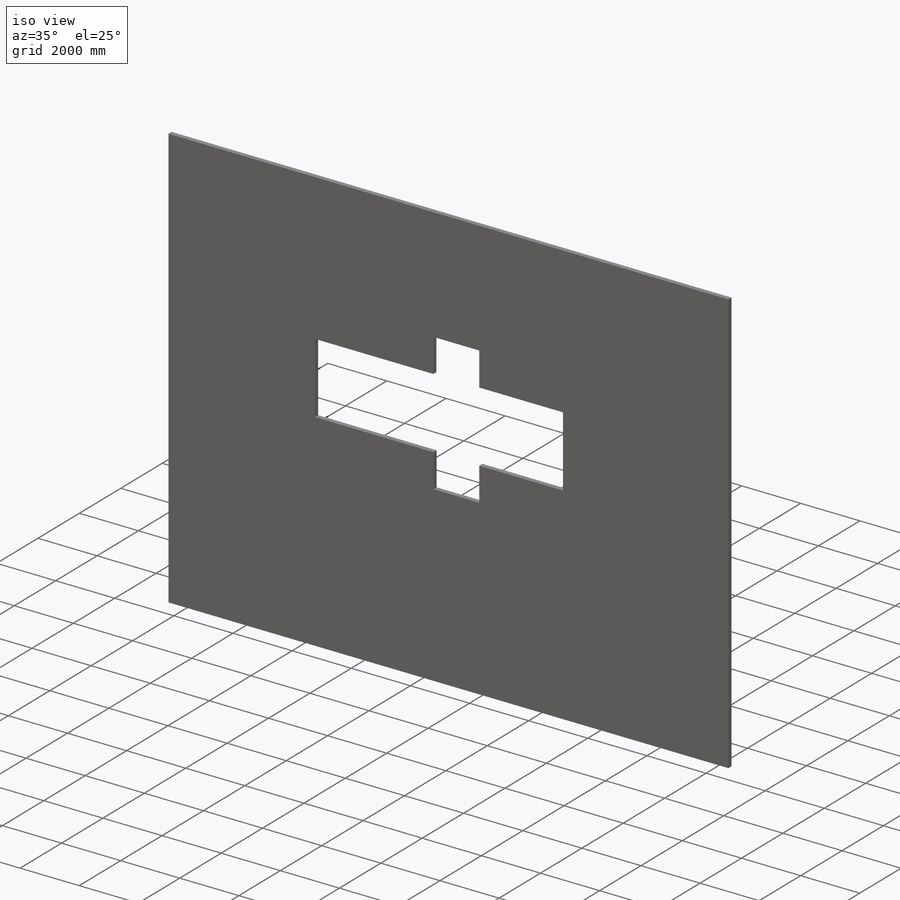
[diagram: iso view]
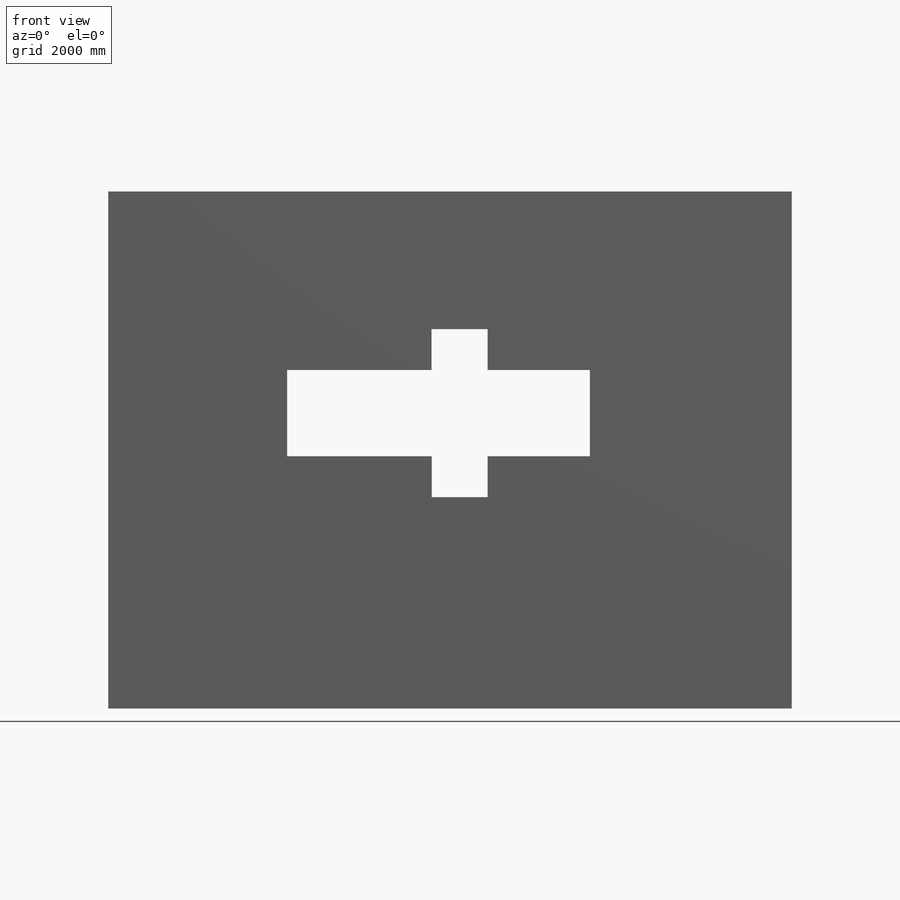
[diagram: front view]
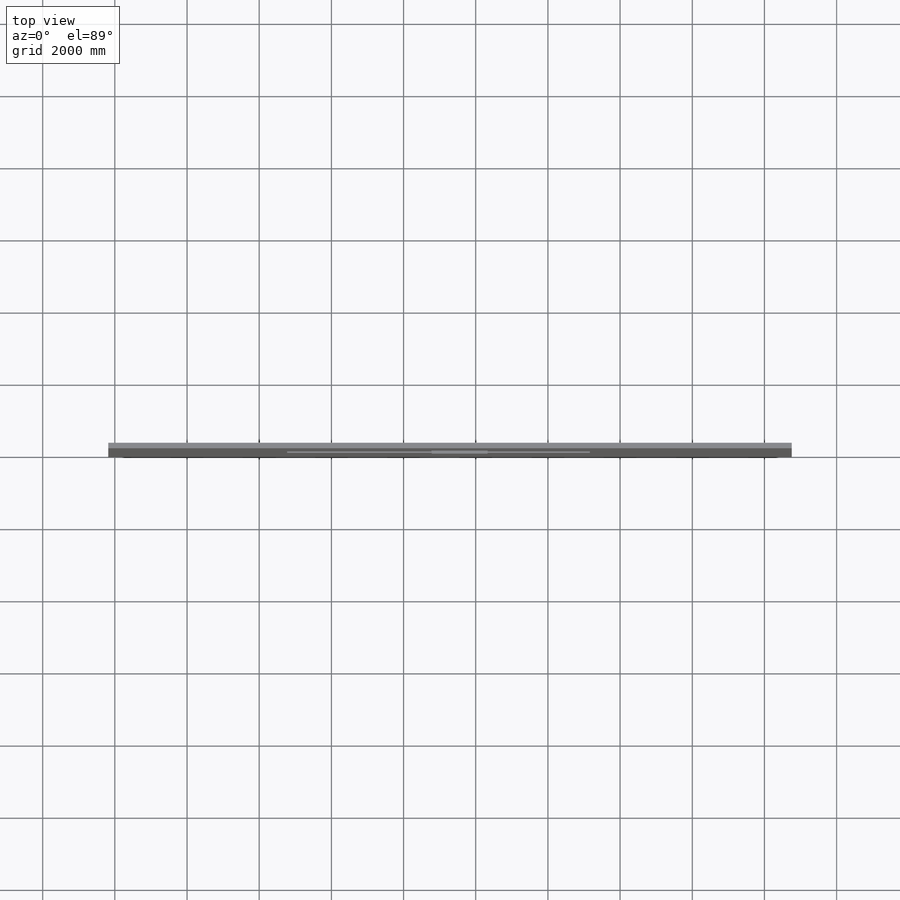
[diagram: top view]
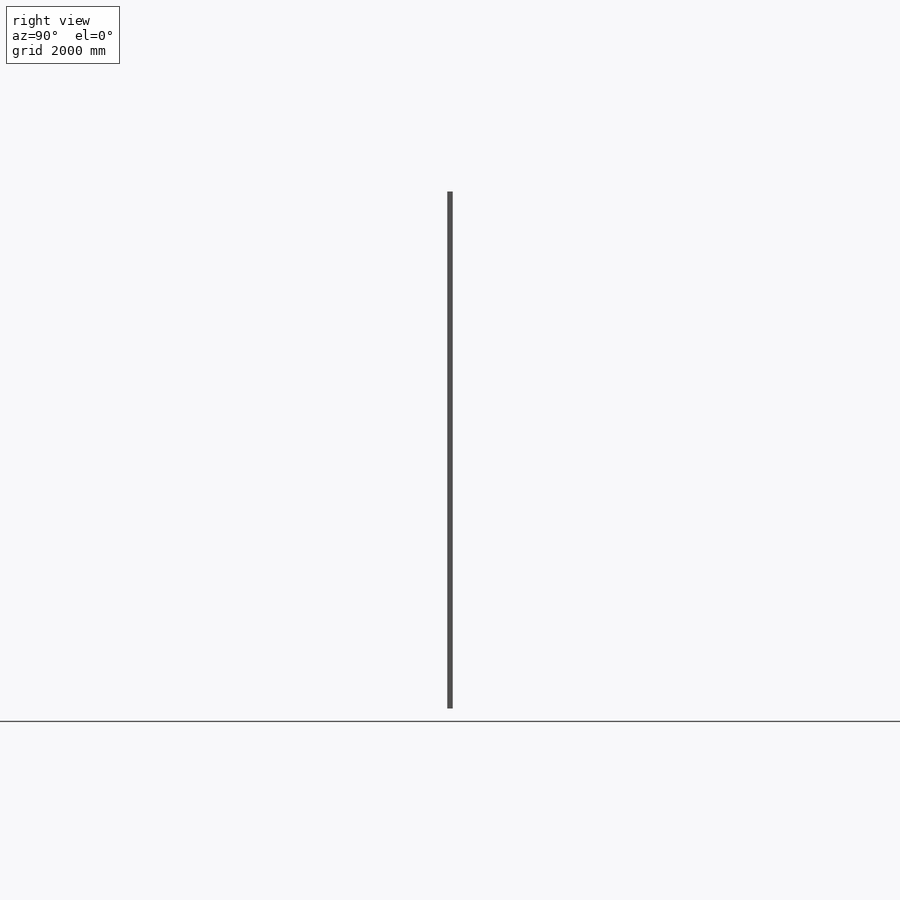
[diagram: right view]
SOLIDWORKS PART (.sldprt)
format: sldprt  version: not decoded by parser v0  size: 1,620,480 bytes
history: native  units: mm
features: sketch x4, material x1, extrude x1, cut_extrude x1 (+12 scaffold rows collapsed)
feature tree (19):
  scaffold x12  (default folders/planes/origin — collapsed)
  material  "Material <not specified>"
  sketch  "Model"  dims[c1.D1=260.0mm c1.D2=200.0mm c1.D3=400.0mm c1.D4=~401.123422mm c2.D4=~4.289153deg]
  sketch  "Sketch3"
  sketch  "Sketch4"  dims[D1=~18941.412605mm D2=~14329.342671mm]
  extrude  "Boss-Extrude1"  Depth=152.4mm
  sketch  "Sketch7"  dims[D1=317.5mm D2=635.0mm]
  cut_extrude  "Cut-Extrude1"  Depth=609.6mm
decode coverage: 5 of 6 modeling features carry decoded parameters
note: ~ marks probable driven/reference dimensions
note: suppression state not decoded; provenance and decode notes live in map.json
